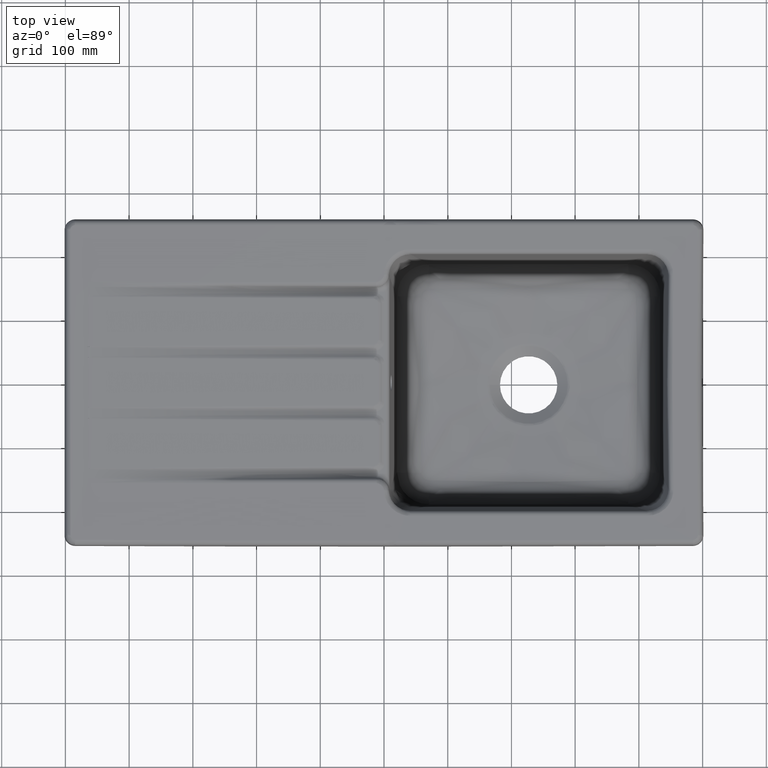
[diagram: clean part render]
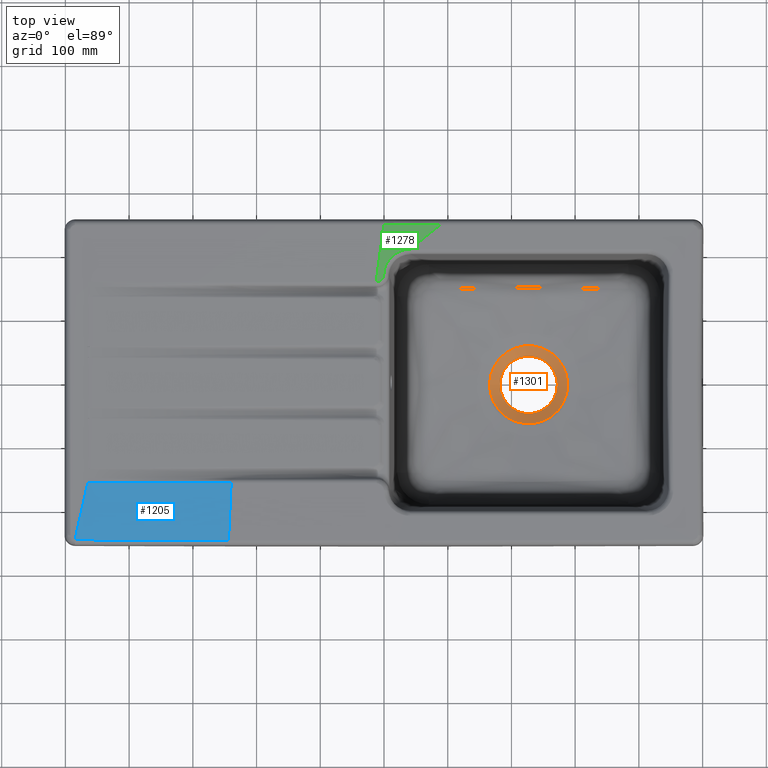
[diagram: same view with three faces highlighted in distinct colors, each labeled with its STEP entity id]
A machine part, top view with three faces highlighted in distinct colors.
Their STEP definitions:

[orange] entity #1301 — the highlighted conical surface has half-angle 59 deg.
#60=CONICAL_SURFACE('',#6915,45.,58.9999999999998);
#66=FACE_BOUND('',#2275,.T.);
#67=FACE_BOUND('',#2276,.T.);
#597=CIRCLE('',#6868,61.353698704987);
#630=CIRCLE('',#6914,45.);
#1301=ADVANCED_FACE('',(#66,#67),#60,.F.);
#2275=EDGE_LOOP('',(#3319));
#2276=EDGE_LOOP('',(#3320));
#3319=ORIENTED_EDGE('',*,*,#5550,.T.);
#3320=ORIENTED_EDGE('',*,*,#5651,.F.);
#4835=VERTEX_POINT('',#13682);
#4885=VERTEX_POINT('',#16046);
#5550=EDGE_CURVE('',#4835,#4835,#597,.T.);
#5651=EDGE_CURVE('',#4885,#4885,#630,.T.);
#6868=AXIS2_PLACEMENT_3D('',#13681,#7440,#7441);
#6914=AXIS2_PLACEMENT_3D('',#16045,#7547,#7548);
#6915=AXIS2_PLACEMENT_3D('',#16047,#7549,#7550);
#7440=DIRECTION('',(0.,0.,1.));
#7441=DIRECTION('',(-1.,0.,0.));
#7547=DIRECTION('',(0.,0.,1.));
#7548=DIRECTION('',(1.,0.,0.));
#7549=DIRECTION('',(0.,0.,1.));
#7550=DIRECTION('',(-1.,0.,-1.6238172810371E-17));
#13681=CARTESIAN_POINT('',(227.,0.,-200.989197615576));
#13682=CARTESIAN_POINT('',(165.646301295013,0.,-200.989197615576));
#16045=CARTESIAN_POINT('',(227.,0.,-210.815491142845));
#16046=CARTESIAN_POINT('',(272.,0.,-210.815491142845));
#16047=CARTESIAN_POINT('',(227.,0.,-210.815491142845));

[blue] entity #1205 — the highlighted face is a freeform B-spline surface patch.
#1205=ADVANCED_FACE('',(#1736),#1603,.T.);
#1603=B_SPLINE_SURFACE_WITH_KNOTS('',1,3,((#11895,#11896,#11897,#11898,
#11899,#11900,#11901,#11902,#11903,#11904,#11905,#11906),(#11907,#11908,
#11909,#11910,#11911,#11912,#11913,#11914,#11915,#11916,#11917,#11918)),
 .UNSPECIFIED.,.F.,.F.,.F.,(2,2),(4,1,1,1,2,1,1,1,4),(0.,1.),(0.,0.246798274539967,
0.493596549079934,0.740394823619901,0.987193098159868,0.990394823619901,
0.993596549079934,0.996798274539967,1.),.UNSPECIFIED.);
#1736=FACE_OUTER_BOUND('',#2178,.T.);
#2178=EDGE_LOOP('',(#2930,#2931,#2932,#2933));
#2930=ORIENTED_EDGE('',*,*,#5423,.T.);
#2931=ORIENTED_EDGE('',*,*,#5460,.F.);
#2932=ORIENTED_EDGE('',*,*,#5461,.F.);
#2933=ORIENTED_EDGE('',*,*,#5339,.T.);
#4693=VERTEX_POINT('',#9955);
#4722=VERTEX_POINT('',#10376);
#4774=VERTEX_POINT('',#11209);
#4791=VERTEX_POINT('',#11890);
#5339=EDGE_CURVE('',#4722,#4693,#6327,.T.);
#5423=EDGE_CURVE('',#4693,#4774,#6375,.T.);
#5460=EDGE_CURVE('',#4791,#4774,#6396,.T.);
#5461=EDGE_CURVE('',#4722,#4791,#6397,.T.);
#6327=B_SPLINE_CURVE_WITH_KNOTS('',3,(#10377,#10378,#10379,#10380,#10381,
#10382,#10383,#10384,#10385,#10386,#10387,#10388),.UNSPECIFIED.,.F.,.F.,
(4,1,1,1,2,1,1,1,4),(0.,0.00320172546003294,0.006403450920066,0.00960517638009895,
0.012806901840132,0.259605176380099,0.506403450920066,0.753201725460033,
1.),.UNSPECIFIED.);
#6375=B_SPLINE_CURVE_WITH_KNOTS('',1,(#11210,#11211),.UNSPECIFIED.,.F.,
 .F.,(2,2),(0.,1.),.UNSPECIFIED.);
#6396=B_SPLINE_CURVE_WITH_KNOTS('',3,(#11878,#11879,#11880,#11881,#11882,
#11883,#11884,#11885,#11886,#11887,#11888,#11889),.UNSPECIFIED.,.F.,.F.,
(4,1,1,1,2,1,1,1,4),(0.,0.00320172546003306,0.00640345092006622,0.00960517638009883,
0.012806901840132,0.259605176380099,0.506403450920066,0.753201725460033,
1.),.UNSPECIFIED.);
#6397=B_SPLINE_CURVE_WITH_KNOTS('',3,(#11891,#11892,#11893,#11894),
 .UNSPECIFIED.,.F.,.F.,(4,4),(0.,1.),.UNSPECIFIED.);
#9955=CARTESIAN_POINT('',(-244.075520299499,-247.746739862087,0.499781303205391));
#10376=CARTESIAN_POINT('',(-485.000000003778,-247.000001832301,0.499781359847975));
#10377=CARTESIAN_POINT('',(-484.999999999844,-246.999999999304,0.499999999996089));
#10378=CARTESIAN_POINT('',(-484.742876225824,-247.001060308034,0.499999999996089));
#10379=CARTESIAN_POINT('',(-484.228628670829,-247.003179239111,0.499999999996089));
#10380=CARTESIAN_POINT('',(-483.457257317509,-247.006352576573,0.499999999996089));
#10381=CARTESIAN_POINT('',(-482.685885943392,-247.009520854882,0.499999999996089));
#10382=CARTESIAN_POINT('',(-482.171638346806,-247.011629667653,0.499999999996089));
#10383=CARTESIAN_POINT('',(-462.094666963888,-247.093894934175,0.499999999996089));
#10384=CARTESIAN_POINT('',(-422.454930744334,-247.246298228088,0.499999999996089));
#10385=CARTESIAN_POINT('',(-362.995218440598,-247.44484283072,0.499999999996089));
#10386=CARTESIAN_POINT('',(-303.535413359696,-247.613327095114,0.499999999996089));
#10387=CARTESIAN_POINT('',(-263.895491585813,-247.70560971255,0.499999999996089));
#10388=CARTESIAN_POINT('',(-244.075520301757,-247.746740964896,0.499999999996089));
#11209=CARTESIAN_POINT('',(-239.958154124783,-158.,0.));
#11210=CARTESIAN_POINT('',(-244.075520301789,-247.746740965598,0.5));
#11211=CARTESIAN_POINT('',(-239.958154124783,-158.,0.));
#11878=CARTESIAN_POINT('',(-465.,-158.,0.));
#11879=CARTESIAN_POINT('',(-464.75983207269,-158.,0.));
#11880=CARTESIAN_POINT('',(-464.279496218073,-158.,0.));
#11881=CARTESIAN_POINT('',(-463.558990133037,-158.,0.));
#11882=CARTESIAN_POINT('',(-462.838479441719,-158.,0.));
#11883=CARTESIAN_POINT('',(-462.358134374432,-158.,0.));
#11884=CARTESIAN_POINT('',(-443.604647218163,-158.,0.));
#11885=CARTESIAN_POINT('',(-406.578017973013,-158.,0.));
#11886=CARTESIAN_POINT('',(-351.038067195632,-158.,0.));
#11887=CARTESIAN_POINT('',(-295.498111811817,-158.,0.));
#11888=CARTESIAN_POINT('',(-258.471473353794,-158.,0.));
#11889=CARTESIAN_POINT('',(-239.958154124783,-158.,0.));
#11890=CARTESIAN_POINT('',(-465.,-158.,-2.80340365457926E-14));
#11891=CARTESIAN_POINT('',(-485.,-247.,0.5));
#11892=CARTESIAN_POINT('',(-478.333333333333,-217.333333333333,0.333333333333333));
#11893=CARTESIAN_POINT('',(-471.666666666667,-187.666666666667,0.166666666666667));
#11894=CARTESIAN_POINT('',(-465.,-158.,0.));
#11895=CARTESIAN_POINT('',(-244.075520301789,-247.746740965598,0.5));
#11896=CARTESIAN_POINT('',(-263.895491585855,-247.705609713252,0.5));
#11897=CARTESIAN_POINT('',(-303.535413359759,-247.613327095815,0.5));
#11898=CARTESIAN_POINT('',(-362.995218440691,-247.44484283142,0.5));
#11899=CARTESIAN_POINT('',(-422.454930744458,-247.246298228786,0.5));
#11900=CARTESIAN_POINT('',(-462.094666964033,-247.093894934872,0.5));
#11901=CARTESIAN_POINT('',(-482.171638346961,-247.011629668349,0.5));
#11902=CARTESIAN_POINT('',(-482.685885943547,-247.009520855578,0.5));
#11903=CARTESIAN_POINT('',(-483.457257317665,-247.006352577269,0.5));
#11904=CARTESIAN_POINT('',(-484.228628670985,-247.003179239807,0.5));
#11905=CARTESIAN_POINT('',(-484.74287622598,-247.00106030873,0.5));
#11906=CARTESIAN_POINT('',(-485.,-247.,0.5));
#11907=CARTESIAN_POINT('',(-239.958154124783,-158.,0.));
#11908=CARTESIAN_POINT('',(-258.471473353794,-158.,0.));
#11909=CARTESIAN_POINT('',(-295.498111811817,-158.,0.));
#11910=CARTESIAN_POINT('',(-351.038067195632,-158.,0.));
#11911=CARTESIAN_POINT('',(-406.578017973013,-158.,0.));
#11912=CARTESIAN_POINT('',(-443.604647218163,-158.,0.));
#11913=CARTESIAN_POINT('',(-462.358134374432,-158.,0.));
#11914=CARTESIAN_POINT('',(-462.838479441719,-158.,0.));
#11915=CARTESIAN_POINT('',(-463.558990133037,-158.,0.));
#11916=CARTESIAN_POINT('',(-464.279496218073,-158.,0.));
#11917=CARTESIAN_POINT('',(-464.75983207269,-158.,0.));
#11918=CARTESIAN_POINT('',(-465.,-158.,0.));

[green] entity #1278 — the highlighted face is a freeform B-spline surface patch.
#318=(
BOUNDED_CURVE()
B_SPLINE_CURVE(3,(#15351,#15352,#15353,#15354,#15355,#15356,#15357,#15358,
#15359,#15360,#15361,#15362,#15363,#15364),.UNSPECIFIED.,.F.,.F.)
B_SPLINE_CURVE_WITH_KNOTS((4,2,2,2,2,2,4),(0.,0.250006659180473,0.37500998877071,
0.500013318360947,0.625016647951184,0.75001997754142,1.),.UNSPECIFIED.)
CURVE()
GEOMETRIC_REPRESENTATION_ITEM()
RATIONAL_B_SPLINE_CURVE((1.,1.,1.,1.,1.,1.,1.,1.,1.,1.,1.,1.,1.,1.))
REPRESENTATION_ITEM('')
);
#319=(
BOUNDED_CURVE()
B_SPLINE_CURVE(3,(#15366,#15367,#15368,#15369,#15370,#15371,#15372,#15373,
#15374,#15375,#15376,#15377,#15378,#15379,#15380,#15381),.UNSPECIFIED.,
 .F.,.F.)
B_SPLINE_CURVE_WITH_KNOTS((4,2,2,2,2,2,2,4),(0.,0.125749236006113,0.251498472012227,
0.37724770801834,0.502996944024453,0.628746180030566,0.75449541603668,1.),
 .UNSPECIFIED.)
CURVE()
GEOMETRIC_REPRESENTATION_ITEM()
RATIONAL_B_SPLINE_CURVE((1.,1.,1.,1.,1.,1.,1.,1.,1.,1.,1.,1.,1.,1.,1.,1.))
REPRESENTATION_ITEM('')
);
#1278=ADVANCED_FACE('',(#1808),#1609,.F.);
#1609=B_SPLINE_SURFACE_WITH_KNOTS('',3,3,((#15382,#15383,#15384,#15385,
#15386,#15387,#15388,#15389),(#15390,#15391,#15392,#15393,#15394,#15395,
#15396,#15397),(#15398,#15399,#15400,#15401,#15402,#15403,#15404,#15405),
(#15406,#15407,#15408,#15409,#15410,#15411,#15412,#15413),(#15414,#15415,
#15416,#15417,#15418,#15419,#15420,#15421),(#15422,#15423,#15424,#15425,
#15426,#15427,#15428,#15429),(#15430,#15431,#15432,#15433,#15434,#15435,
#15436,#15437),(#15438,#15439,#15440,#15441,#15442,#15443,#15444,#15445),
(#15446,#15447,#15448,#15449,#15450,#15451,#15452,#15453),(#15454,#15455,
#15456,#15457,#15458,#15459,#15460,#15461),(#15462,#15463,#15464,#15465,
#15466,#15467,#15468,#15469),(#15470,#15471,#15472,#15473,#15474,#15475,
#15476,#15477)),.UNSPECIFIED.,.F.,.F.,.F.,(4,2,2,2,2,4),(4,2,2,4),(0.,0.125,
0.25,0.5,0.75,1.),(0.,0.5,0.75,1.),.UNSPECIFIED.);
#1808=FACE_OUTER_BOUND('',#2252,.T.);
#2252=EDGE_LOOP('',(#3231,#3232,#3233,#3234,#3235,#3236));
#3231=ORIENTED_EDGE('',*,*,#5484,.T.);
#3232=ORIENTED_EDGE('',*,*,#5490,.T.);
#3233=ORIENTED_EDGE('',*,*,#5604,.F.);
#3234=ORIENTED_EDGE('',*,*,#5605,.F.);
#3235=ORIENTED_EDGE('',*,*,#5485,.T.);
#3236=ORIENTED_EDGE('',*,*,#5487,.T.);
#4752=VERTEX_POINT('',#10725);
#4753=VERTEX_POINT('',#10778);
#4800=VERTEX_POINT('',#12272);
#4801=VERTEX_POINT('',#12293);
#4803=VERTEX_POINT('',#12325);
#4860=VERTEX_POINT('',#15365);
#5484=EDGE_CURVE('',#4800,#4753,#6410,.T.);
#5485=EDGE_CURVE('',#4801,#4752,#6411,.T.);
#5487=EDGE_CURVE('',#4752,#4800,#6413,.T.);
#5490=EDGE_CURVE('',#4753,#4803,#6416,.T.);
#5604=EDGE_CURVE('',#4860,#4803,#318,.T.);
#5605=EDGE_CURVE('',#4801,#4860,#319,.T.);
#6410=B_SPLINE_CURVE_WITH_KNOTS('',3,(#12273,#12274,#12275,#12276),
 .UNSPECIFIED.,.F.,.F.,(4,4),(0.,1.),.UNSPECIFIED.);
#6411=B_SPLINE_CURVE_WITH_KNOTS('',3,(#12289,#12290,#12291,#12292),
 .UNSPECIFIED.,.F.,.F.,(4,4),(0.,1.),.UNSPECIFIED.);
#6413=B_SPLINE_CURVE_WITH_KNOTS('',3,(#12299,#12300,#12301,#12302),
 .UNSPECIFIED.,.F.,.F.,(4,4),(0.,1.),.UNSPECIFIED.);
#6416=B_SPLINE_CURVE_WITH_KNOTS('',3,(#12326,#12327,#12328,#12329,#12330,
#12331),.UNSPECIFIED.,.F.,.F.,(4,2,4),(0.,0.5,1.),.UNSPECIFIED.);
#10725=CARTESIAN_POINT('',(87.5111013449071,246.999982379998,0.501204504056561));
#10778=CARTESIAN_POINT('',(-0.386278502817989,247.000003353456,0.499562720949993));
#12272=CARTESIAN_POINT('',(19.2859021316001,247.00012364404,0.488557610031536));
#12273=CARTESIAN_POINT('',(19.2859021032133,247.000122117469,0.488776251513028));
#12274=CARTESIAN_POINT('',(12.7284733202875,247.000112367601,0.487924774518731));
#12275=CARTESIAN_POINT('',(6.17103892523373,247.00010733249,0.486368183811821));
#12276=CARTESIAN_POINT('',(-0.386278062946872,247.000003663676,0.499562719695977));
#12289=CARTESIAN_POINT('',(41.357939425357,209.330570770673,0.00323101274306514));
#12290=CARTESIAN_POINT('',(56.7421043378952,221.887222484443,0.141757760315984));
#12291=CARTESIAN_POINT('',(72.1265833910145,234.443610288206,0.319753470904713));
#12292=CARTESIAN_POINT('',(87.5111010748494,246.999965638245,0.502602786033815));
#12293=CARTESIAN_POINT('',(41.3579283575772,209.33061053298,0.00161545272143282));
#12299=CARTESIAN_POINT('',(87.5111012769127,246.999965850475,0.502602789056142));
#12300=CARTESIAN_POINT('',(64.7691919026143,247.000166063161,0.475841360298977));
#12301=CARTESIAN_POINT('',(42.027621975413,247.000081105798,0.491728431919173));
#12302=CARTESIAN_POINT('',(19.2859021032133,247.000122117469,0.488776251513028));
#12325=CARTESIAN_POINT('',(-12.3342218144832,158.000691972755,0.0029328043711908));
#12326=CARTESIAN_POINT('',(-0.38627806294688,247.000003663676,0.499562719695976));
#12327=CARTESIAN_POINT('',(-2.37783409242579,232.16718582377,0.379296218132798));
#12328=CARTESIAN_POINT('',(-4.36880941149873,217.333880128124,0.331990800103812));
#12329=CARTESIAN_POINT('',(-8.35131487522767,187.6677348467,0.167671076984464));
#12330=CARTESIAN_POINT('',(-10.3425759590239,172.834669222453,0.0844618698883612));
#12331=CARTESIAN_POINT('',(-12.3337991612619,158.001571773851,0.0060121428142827));
#15351=CARTESIAN_POINT('',(-0.290993061082234,169.486153768803,0.));
#15352=CARTESIAN_POINT('',(-0.357574414147317,167.939814065308,0.));
#15353=CARTESIAN_POINT('',(-0.726341867707484,166.424111803207,0.));
#15354=CARTESIAN_POINT('',(-1.67552071871106,164.343974556518,0.));
#15355=CARTESIAN_POINT('',(-2.06410543158911,163.671152181353,0.));
#15356=CARTESIAN_POINT('',(-2.95411745978495,162.424700604016,0.));
#15357=CARTESIAN_POINT('',(-3.4537416264737,161.849982274244,0.));
#15358=CARTESIAN_POINT('',(-4.5612654240169,160.796707190588,0.));
#15359=CARTESIAN_POINT('',(-5.17409882524063,160.316664888265,0.));
#15360=CARTESIAN_POINT('',(-6.45954078608145,159.494191269868,0.));
#15361=CARTESIAN_POINT('',(-7.13711158070675,159.145831656823,0.));
#15362=CARTESIAN_POINT('',(-9.27590834218421,158.292488517672,0.));
#15363=CARTESIAN_POINT('',(-10.8019338372646,158.000062318001,0.));
#15364=CARTESIAN_POINT('',(-12.334288938209,158.000000009959,0.));
#15365=CARTESIAN_POINT('',(-0.291013797892351,169.486172979702,-0.000238388190678809));
#15366=CARTESIAN_POINT('',(41.3579201807008,209.330649392139,0.));
#15367=CARTESIAN_POINT('',(38.6638666179243,209.330649391467,0.));
#15368=CARTESIAN_POINT('',(36.0122823966903,209.079381331407,-1.73472347597681E-14));
#15369=CARTESIAN_POINT('',(30.7927270690365,208.087041910131,-1.73472347597681E-14));
#15370=CARTESIAN_POINT('',(28.2006558137226,207.335849407422,-2.60208521396521E-14));
#15371=CARTESIAN_POINT('',(23.2246270692744,205.353114547011,-2.60208521396521E-14));
#15372=CARTESIAN_POINT('',(20.8629389126073,204.13640969928,-1.38777878078145E-14));
#15373=CARTESIAN_POINT('',(16.3895340212068,201.257107483957,-1.38777878078145E-14));
#15374=CARTESIAN_POINT('',(14.2590433115695,199.572384088075,-2.08166817117217E-14));
#15375=CARTESIAN_POINT('',(10.4196083505271,195.870708024871,-2.08166817117217E-14));
#15376=CARTESIAN_POINT('',(8.69468928770001,193.850131907556,5.20417042793042E-15));
#15377=CARTESIAN_POINT('',(5.63572890952936,189.468387375746,5.20417042793042E-15));
#15378=CARTESIAN_POINT('',(4.30921198735901,187.105162166479,6.93889390390723E-15));
#15379=CARTESIAN_POINT('',(1.14164656272339,179.921040425664,6.93889390390723E-15));
#15380=CARTESIAN_POINT('',(-0.0639756127008154,174.746377167183,1.52040064077531E-14));
#15381=CARTESIAN_POINT('',(-0.290972188945726,169.486202042144,1.55979663285693E-14));
#15382=CARTESIAN_POINT('',(-58.1046267190518,207.618295320972,0.620137831878183));
#15383=CARTESIAN_POINT('',(-50.785499848957,197.914174545895,0.50592363480077));
#15384=CARTESIAN_POINT('',(-43.4662923131639,188.209986003435,0.401844363321045));
#15385=CARTESIAN_POINT('',(-32.4876523351133,173.653847120689,0.224199917510431));
#15386=CARTESIAN_POINT('',(-28.8281381888454,168.801828140733,0.160900123362121));
#15387=CARTESIAN_POINT('',(-21.5090268910948,159.097720448007,0.044729400137526));
#15388=CARTESIAN_POINT('',(-17.8493598692457,154.245573037029,0.000637058971812099));
#15389=CARTESIAN_POINT('',(-14.1895808323921,149.393331522069,-0.0293815949031466));
#15390=CARTESIAN_POINT('',(-53.2268175719828,211.297415475174,0.608368484286926));
#15391=CARTESIAN_POINT('',(-45.9076590728749,201.593268128513,0.498128190640952));
#15392=CARTESIAN_POINT('',(-38.5884167020168,191.889050321059,0.398425634416697));
#15393=CARTESIAN_POINT('',(-27.6097618041901,177.332898904185,0.222655725419571));
#15394=CARTESIAN_POINT('',(-23.9502618829815,172.480891874724,0.157568679433747));
#15395=CARTESIAN_POINT('',(-16.6311822856734,162.776810813591,0.037415078316116));
#15396=CARTESIAN_POINT('',(-12.9715079231941,157.924657235737,-0.00575497813634218));
#15397=CARTESIAN_POINT('',(-9.31171235896752,153.072401836105,-0.033697114983283));
#15398=CARTESIAN_POINT('',(-48.34899726263,214.976526251925,0.59800157803829));
#15399=CARTESIAN_POINT('',(-41.0298097056638,205.27235449371,0.491412145149158));
#15400=CARTESIAN_POINT('',(-33.7104989560837,195.568079241183,0.400300765525226));
#15401=CARTESIAN_POINT('',(-22.7318058877803,181.01189575723,0.229326636582668));
#15402=CARTESIAN_POINT('',(-19.0722887007649,176.159874222737,0.166408885244321));
#15403=CARTESIAN_POINT('',(-11.7531605641397,166.455752383645,0.0523538164552383));
#15404=CARTESIAN_POINT('',(-8.09332351924741,161.603462136036,0.0296233543839572));
#15405=CARTESIAN_POINT('',(-4.43363365814793,156.75129553777,-0.0115994377217712));
#15406=CARTESIAN_POINT('',(-38.5933568761428,222.334748000513,0.577238589437666));
#15407=CARTESIAN_POINT('',(-31.274124338469,212.630538453934,0.476300581320675));
#15408=CARTESIAN_POINT('',(-23.9546984084699,202.926166438151,0.399660594160973));
#15409=CARTESIAN_POINT('',(-12.9760522694064,188.370022379527,0.222790224871749));
#15410=CARTESIAN_POINT('',(-9.31658507645619,183.518042845128,0.153591165087169));
#15411=CARTESIAN_POINT('',(-1.99758344182699,173.814027280566,0.0236422486438754));
#15412=CARTESIAN_POINT('',(1.6622396358725,168.961748766817,-0.000843066637895795));
#15413=CARTESIAN_POINT('',(5.32190020869728,164.109606773678,-0.045745669266632));
#15414=CARTESIAN_POINT('',(-33.7155367990085,226.01385897235,0.566842507085677));
#15415=CARTESIAN_POINT('',(-26.3962883384853,216.309636048959,0.467905062983986));
#15416=CARTESIAN_POINT('',(-19.0768156067891,206.605224714997,0.397145291688193));
#15417=CARTESIAN_POINT('',(-8.09829990087422,192.049190233471,0.203887160295851));
#15418=CARTESIAN_POINT('',(-4.43907432628708,187.197413683046,0.104330907963687));
#15419=CARTESIAN_POINT('',(2.87981813960646,177.493489831314,-0.039334086540201));
#15420=CARTESIAN_POINT('',(6.53964441095005,172.64120863458,-0.0634181489207459));
#15421=CARTESIAN_POINT('',(10.199399815618,167.788986973057,-0.0964059761730729));
#15422=CARTESIAN_POINT('',(-19.0821107511128,237.051220605474,0.53135940769178));
#15423=CARTESIAN_POINT('',(-11.7628462136042,227.346984175782,0.434441893435167));
#15424=CARTESIAN_POINT('',(-4.4433984388616,217.642593808196,0.360546503487297));
#15425=CARTESIAN_POINT('',(6.53461346125091,203.086982574732,0.103989665993722));
#15426=CARTESIAN_POINT('',(10.1937162942323,198.235309139727,-0.0109879744787971));
#15427=CARTESIAN_POINT('',(17.512763215166,188.531255530068,-0.135247070627505));
#15428=CARTESIAN_POINT('',(21.1725362528903,183.679019054983,-0.166019462533537));
#15429=CARTESIAN_POINT('',(24.8323272932871,178.826767455827,-0.194529978259143));
#15430=CARTESIAN_POINT('',(-9.32674249199633,244.409670968702,0.476406041815839));
#15431=CARTESIAN_POINT('',(-2.00744621970864,234.705407878571,0.383475719542464));
#15432=CARTESIAN_POINT('',(5.31201986032369,225.001002132682,0.311880226002359));
#15433=CARTESIAN_POINT('',(16.2902090922631,210.445241922466,0.0776035511024726));
#15434=CARTESIAN_POINT('',(19.9495637855648,205.593356899202,-0.0057300862295564));
#15435=CARTESIAN_POINT('',(27.2686276030002,195.889289094765,-0.12786628762898));
#15436=CARTESIAN_POINT('',(30.9283183176551,191.037121779422,-0.168981839037273));
#15437=CARTESIAN_POINT('',(34.5880862223358,186.184889616619,-0.200399151169925));
#15438=CARTESIAN_POINT('',(10.1859083134788,259.124963499384,0.607012429957435));
#15439=CARTESIAN_POINT('',(17.5050826688988,249.420802831809,0.498764340515694));
#15440=CARTESIAN_POINT('',(24.8243683329606,239.716548653665,0.404501189231379));
#15441=CARTESIAN_POINT('',(35.8027537664125,225.160623614245,0.194875484646585));
#15442=CARTESIAN_POINT('',(39.4622171816813,220.308647253481,0.125201792675063));
#15443=CARTESIAN_POINT('',(46.7812595815566,210.60459744197,0.000374665600244128));
#15444=CARTESIAN_POINT('',(50.4408385661632,205.752523991221,-0.0547787695030539));
#15445=CARTESIAN_POINT('',(54.1005345813943,200.90035222286,-0.0952283498459297));
#15446=CARTESIAN_POINT('',(19.9425269719345,266.482363400116,0.709160590512223));
#15447=CARTESIAN_POINT('',(27.2617221315242,256.778185254925,0.603526359463941));
#15448=CARTESIAN_POINT('',(34.5809965749181,247.073940503282,0.507853431338442));
#15449=CARTESIAN_POINT('',(45.5594673916669,232.517943733217,0.308955376543255));
#15450=CARTESIAN_POINT('',(49.218947556976,227.665953300718,0.241386177765499));
#15451=CARTESIAN_POINT('',(56.537977463355,217.961913985013,0.11498935429657));
#15452=CARTESIAN_POINT('',(60.1975272044249,213.109865101807,0.0561617296053978));
#15453=CARTESIAN_POINT('',(63.8571595391175,208.257746831568,0.00771125749166468));
#15454=CARTESIAN_POINT('',(39.4557173120566,281.197202666877,0.907554695436946));
#15455=CARTESIAN_POINT('',(46.7748145680584,271.493106770646,0.789619751675269));
#15456=CARTESIAN_POINT('',(54.0940353619459,261.78890709004,0.687206241516065));
#15457=CARTESIAN_POINT('',(65.0726411186907,247.232796956668,0.505262193827687));
#15458=CARTESIAN_POINT('',(68.732128674111,242.380800315725,0.438621496617277));
#15459=CARTESIAN_POINT('',(76.0511491597522,232.676768914397,0.311041041456968));
#15460=CARTESIAN_POINT('',(79.7106820899731,227.824734154012,0.250101283507068));
#15461=CARTESIAN_POINT('',(83.3703051809012,222.972623649474,0.200489414820466));
#15462=CARTESIAN_POINT('',(49.2123610359853,288.554581510065,1.01285210914173));
#15463=CARTESIAN_POINT('',(56.5314021871966,278.850532747559,0.887868098801534));
#15464=CARTESIAN_POINT('',(63.8505233600528,269.146416758741,0.772938094488814));
#15465=CARTESIAN_POINT('',(74.8291221688331,254.590312462365,0.590121097015989));
#15466=CARTESIAN_POINT('',(78.4886145754049,249.738311745962,0.524089903727302));
#15467=CARTESIAN_POINT('',(85.8076639711192,240.034256057235,0.400141741436084));
#15468=CARTESIAN_POINT('',(89.4672209602618,235.182201084911,0.342224772433552));
#15469=CARTESIAN_POINT('',(93.1268783882873,230.330061733723,0.296927053826897));
#15470=CARTESIAN_POINT('',(58.9691513145127,295.91183723251,1.13656280042126));
#15471=CARTESIAN_POINT('',(66.2881430394812,286.20782999307,1.0053688234573));
#15472=CARTESIAN_POINT('',(73.607223725224,276.503748017541,0.885351974414862));
#15473=CARTESIAN_POINT('',(84.5858030018717,261.947660130141,0.700080938662762));
#15474=CARTESIAN_POINT('',(88.2453189486946,257.095639637535,0.637007367988372));
#15475=CARTESIAN_POINT('',(95.5644262807436,247.3915352764,0.52033838947933));
#15476=CARTESIAN_POINT('',(99.2240176659699,242.539451407871,0.466742981644679));
#15477=CARTESIAN_POINT('',(102.883694968326,237.687295360226,0.42394229540679));